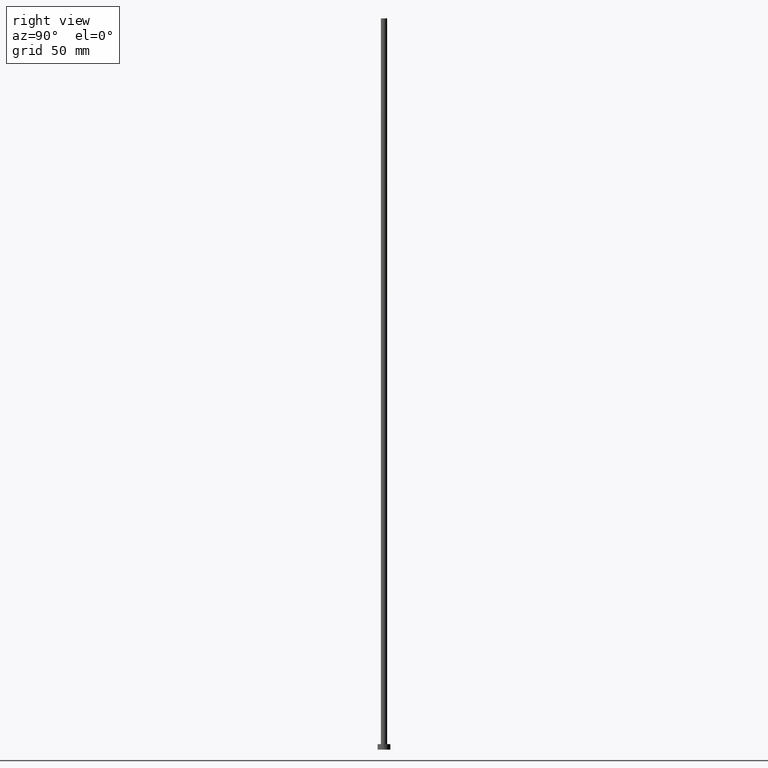
[diagram: clean part render]
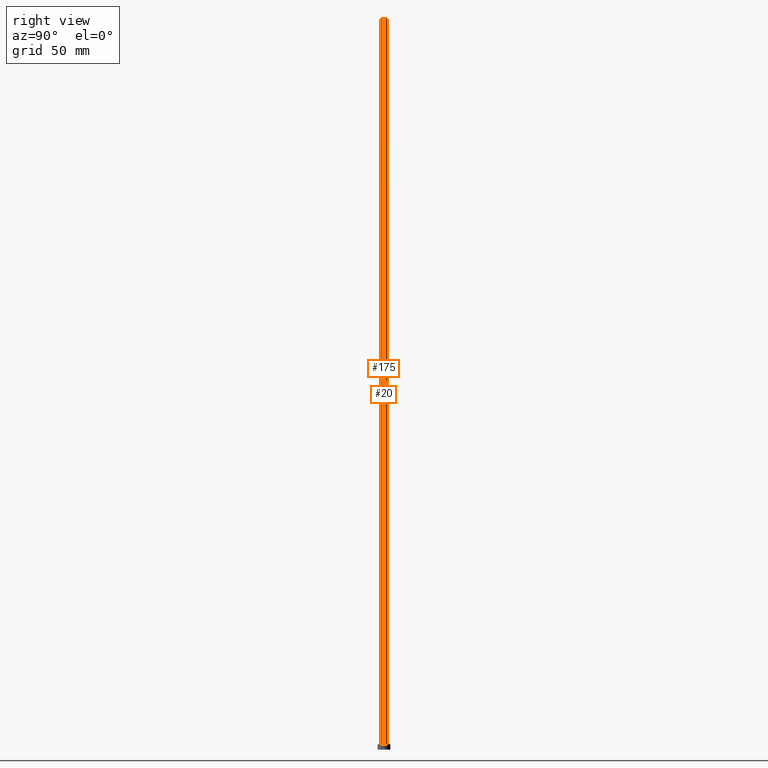
[diagram: same view with one multi-face feature highlighted, each face labeled with its STEP entity id]
A machine part, right view. The highlighted faces form ONE feature: a constant-radius fillet chain: 2 tangent blend faces with common blend radius 1.75 mm. The faces share edges in the B-rep.
Their STEP definitions:
[1] entity #175 (Cylinder):
#7 = CIRCLE ( 'NONE', #217, 1.750000000000000000 ) ;
#13 = ORIENTED_EDGE ( 'NONE', *, *, #55, .F. ) ;
#26 = EDGE_CURVE ( 'NONE', #83, #28, #7, .T. ) ;
#28 = VERTEX_POINT ( 'NONE', #229 ) ;
#31 = LINE ( 'NONE', #152, #70 ) ;
#33 = CARTESIAN_POINT ( 'NONE',  ( 0.000000000000000000, 0.000000000000000000, 400.0000000000000000 ) ) ;
#34 = DIRECTION ( 'NONE',  ( 1.000000000000000000, 0.000000000000000000, 0.000000000000000000 ) ) ;
#40 = CARTESIAN_POINT ( 'NONE',  ( 0.000000000000000000, 0.000000000000000000, 400.0000000000000000 ) ) ;
#51 = DIRECTION ( 'NONE',  ( 0.000000000000000000, 0.000000000000000000, 1.000000000000000000 ) ) ;
#55 = EDGE_CURVE ( 'NONE', #28, #66, #31, .T. ) ;
#58 = DIRECTION ( 'NONE',  ( -1.000000000000000000, 0.000000000000000000, 0.000000000000000000 ) ) ;
#63 = ORIENTED_EDGE ( 'NONE', *, *, #26, .F. ) ;
#66 = VERTEX_POINT ( 'NONE', #249 ) ;
#70 = VECTOR ( 'NONE', #130, 1000.000000000000000 ) ;
#82 = EDGE_CURVE ( 'NONE', #144, #66, #145, .T. ) ;
#83 = VERTEX_POINT ( 'NONE', #168 ) ;
#85 = CARTESIAN_POINT ( 'NONE',  ( 0.000000000000000000, 0.000000000000000000, 3.000000000000000000 ) ) ;
#87 = DIRECTION ( 'NONE',  ( -0.000000000000000000, -0.000000000000000000, -1.000000000000000000 ) ) ;
#89 = CARTESIAN_POINT ( 'NONE',  ( -1.750000000000000000, 0.000000000000000000, 400.0000000000000000 ) ) ;
#109 = DIRECTION ( 'NONE',  ( 1.000000000000000000, 0.000000000000000000, 0.000000000000000000 ) ) ;
#110 = LINE ( 'NONE', #89, #169 ) ;
#113 = ORIENTED_EDGE ( 'NONE', *, *, #82, .T. ) ;
#122 = AXIS2_PLACEMENT_3D ( 'NONE', #40, #158, #58 ) ;
#124 = EDGE_CURVE ( 'NONE', #83, #144, #110, .T. ) ;
#130 = DIRECTION ( 'NONE',  ( -0.000000000000000000, -0.000000000000000000, -1.000000000000000000 ) ) ;
#133 = CARTESIAN_POINT ( 'NONE',  ( -1.750000000000000000, 0.000000000000000000, 3.000000000000000000 ) ) ;
#144 = VERTEX_POINT ( 'NONE', #133 ) ;
#145 = CIRCLE ( 'NONE', #247, 1.750000000000000000 ) ;
#152 = CARTESIAN_POINT ( 'NONE',  ( 1.750000000000000000, 2.143131898507868297E-16, 400.0000000000000000 ) ) ;
#157 = EDGE_LOOP ( 'NONE', ( #13, #63, #224, #113 ) ) ;
#158 = DIRECTION ( 'NONE',  ( -0.000000000000000000, -0.000000000000000000, -1.000000000000000000 ) ) ;
#168 = CARTESIAN_POINT ( 'NONE',  ( -1.750000000000000000, 0.000000000000000000, 400.0000000000000000 ) ) ;
#169 = VECTOR ( 'NONE', #87, 1000.000000000000000 ) ;
#175 = ADVANCED_FACE ( 'NONE', ( #218 ), #234, .T. ) ;
#207 = DIRECTION ( 'NONE',  ( 0.000000000000000000, 0.000000000000000000, 1.000000000000000000 ) ) ;
#217 = AXIS2_PLACEMENT_3D ( 'NONE', #33, #207, #34 ) ;
#218 = FACE_OUTER_BOUND ( 'NONE', #157, .T. ) ;
#224 = ORIENTED_EDGE ( 'NONE', *, *, #124, .T. ) ;
#229 = CARTESIAN_POINT ( 'NONE',  ( 1.750000000000000000, 2.143131898507868297E-16, 400.0000000000000000 ) ) ;
#234 = CYLINDRICAL_SURFACE ( 'NONE', #122, 1.750000000000000000 ) ;
#247 = AXIS2_PLACEMENT_3D ( 'NONE', #85, #51, #109 ) ;
#249 = CARTESIAN_POINT ( 'NONE',  ( 1.750000000000000000, 2.143131898507868297E-16, 3.000000000000000000 ) ) ;
[2] entity #20 (Cylinder):
#12 = ORIENTED_EDGE ( 'NONE', *, *, #55, .T. ) ;
#15 = DIRECTION ( 'NONE',  ( -1.000000000000000000, 0.000000000000000000, 0.000000000000000000 ) ) ;
#16 = CYLINDRICAL_SURFACE ( 'NONE', #75, 1.750000000000000000 ) ;
#20 = ADVANCED_FACE ( 'NONE', ( #248 ), #16, .T. ) ;
#28 = VERTEX_POINT ( 'NONE', #229 ) ;
#30 = EDGE_LOOP ( 'NONE', ( #220, #12, #123, #182 ) ) ;
#31 = LINE ( 'NONE', #152, #70 ) ;
#54 = CIRCLE ( 'NONE', #86, 1.750000000000000000 ) ;
#55 = EDGE_CURVE ( 'NONE', #28, #66, #31, .T. ) ;
#56 = CARTESIAN_POINT ( 'NONE',  ( 0.000000000000000000, 0.000000000000000000, 400.0000000000000000 ) ) ;
#66 = VERTEX_POINT ( 'NONE', #249 ) ;
#70 = VECTOR ( 'NONE', #130, 1000.000000000000000 ) ;
#73 = DIRECTION ( 'NONE',  ( 0.000000000000000000, 0.000000000000000000, 1.000000000000000000 ) ) ;
#75 = AXIS2_PLACEMENT_3D ( 'NONE', #173, #77, #15 ) ;
#77 = DIRECTION ( 'NONE',  ( -0.000000000000000000, -0.000000000000000000, -1.000000000000000000 ) ) ;
#83 = VERTEX_POINT ( 'NONE', #168 ) ;
#86 = AXIS2_PLACEMENT_3D ( 'NONE', #170, #73, #172 ) ;
#87 = DIRECTION ( 'NONE',  ( -0.000000000000000000, -0.000000000000000000, -1.000000000000000000 ) ) ;
#89 = CARTESIAN_POINT ( 'NONE',  ( -1.750000000000000000, 0.000000000000000000, 400.0000000000000000 ) ) ;
#97 = DIRECTION ( 'NONE',  ( 1.000000000000000000, 0.000000000000000000, 0.000000000000000000 ) ) ;
#110 = LINE ( 'NONE', #89, #169 ) ;
#117 = CIRCLE ( 'NONE', #236, 1.750000000000000000 ) ;
#123 = ORIENTED_EDGE ( 'NONE', *, *, #129, .T. ) ;
#124 = EDGE_CURVE ( 'NONE', #83, #144, #110, .T. ) ;
#129 = EDGE_CURVE ( 'NONE', #66, #144, #54, .T. ) ;
#130 = DIRECTION ( 'NONE',  ( -0.000000000000000000, -0.000000000000000000, -1.000000000000000000 ) ) ;
#133 = CARTESIAN_POINT ( 'NONE',  ( -1.750000000000000000, 0.000000000000000000, 3.000000000000000000 ) ) ;
#139 = DIRECTION ( 'NONE',  ( 0.000000000000000000, 0.000000000000000000, 1.000000000000000000 ) ) ;
#144 = VERTEX_POINT ( 'NONE', #133 ) ;
#152 = CARTESIAN_POINT ( 'NONE',  ( 1.750000000000000000, 2.143131898507868297E-16, 400.0000000000000000 ) ) ;
#168 = CARTESIAN_POINT ( 'NONE',  ( -1.750000000000000000, 0.000000000000000000, 400.0000000000000000 ) ) ;
#169 = VECTOR ( 'NONE', #87, 1000.000000000000000 ) ;
#170 = CARTESIAN_POINT ( 'NONE',  ( 0.000000000000000000, 0.000000000000000000, 3.000000000000000000 ) ) ;
#172 = DIRECTION ( 'NONE',  ( 1.000000000000000000, 0.000000000000000000, 0.000000000000000000 ) ) ;
#173 = CARTESIAN_POINT ( 'NONE',  ( 0.000000000000000000, 0.000000000000000000, 400.0000000000000000 ) ) ;
#182 = ORIENTED_EDGE ( 'NONE', *, *, #124, .F. ) ;
#220 = ORIENTED_EDGE ( 'NONE', *, *, #225, .F. ) ;
#225 = EDGE_CURVE ( 'NONE', #28, #83, #117, .T. ) ;
#229 = CARTESIAN_POINT ( 'NONE',  ( 1.750000000000000000, 2.143131898507868297E-16, 400.0000000000000000 ) ) ;
#236 = AXIS2_PLACEMENT_3D ( 'NONE', #56, #139, #97 ) ;
#248 = FACE_OUTER_BOUND ( 'NONE', #30, .T. ) ;
#249 = CARTESIAN_POINT ( 'NONE',  ( 1.750000000000000000, 2.143131898507868297E-16, 3.000000000000000000 ) ) ;